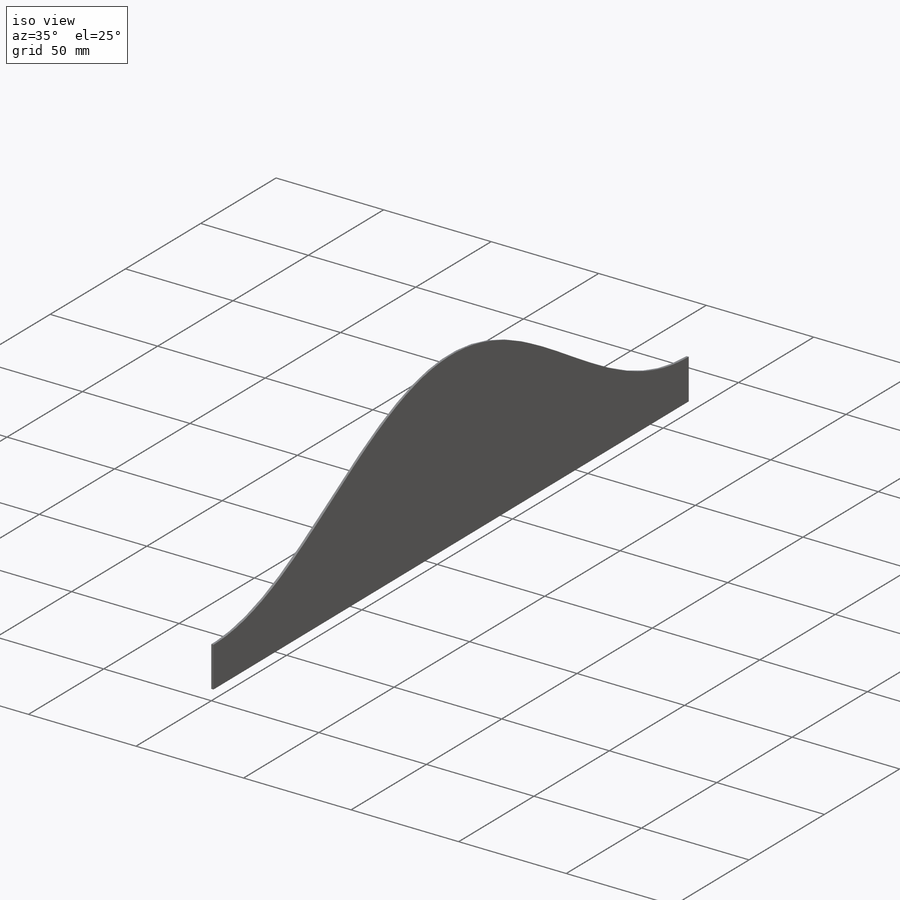
[diagram: iso view]
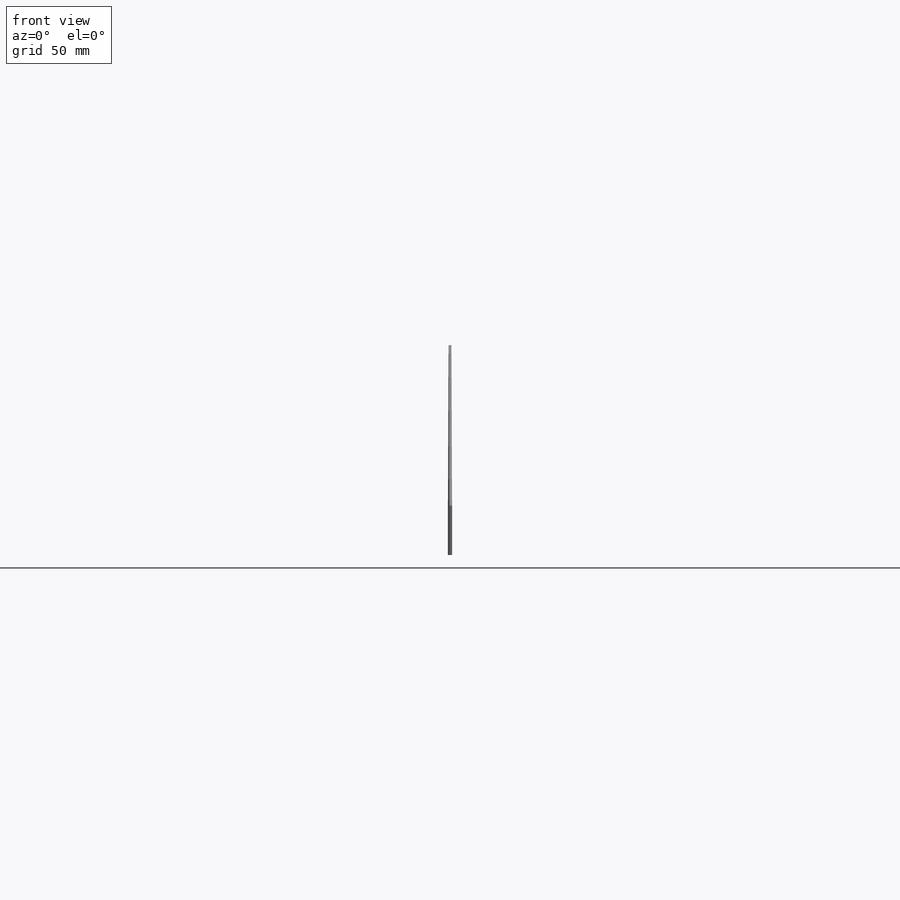
[diagram: front view]
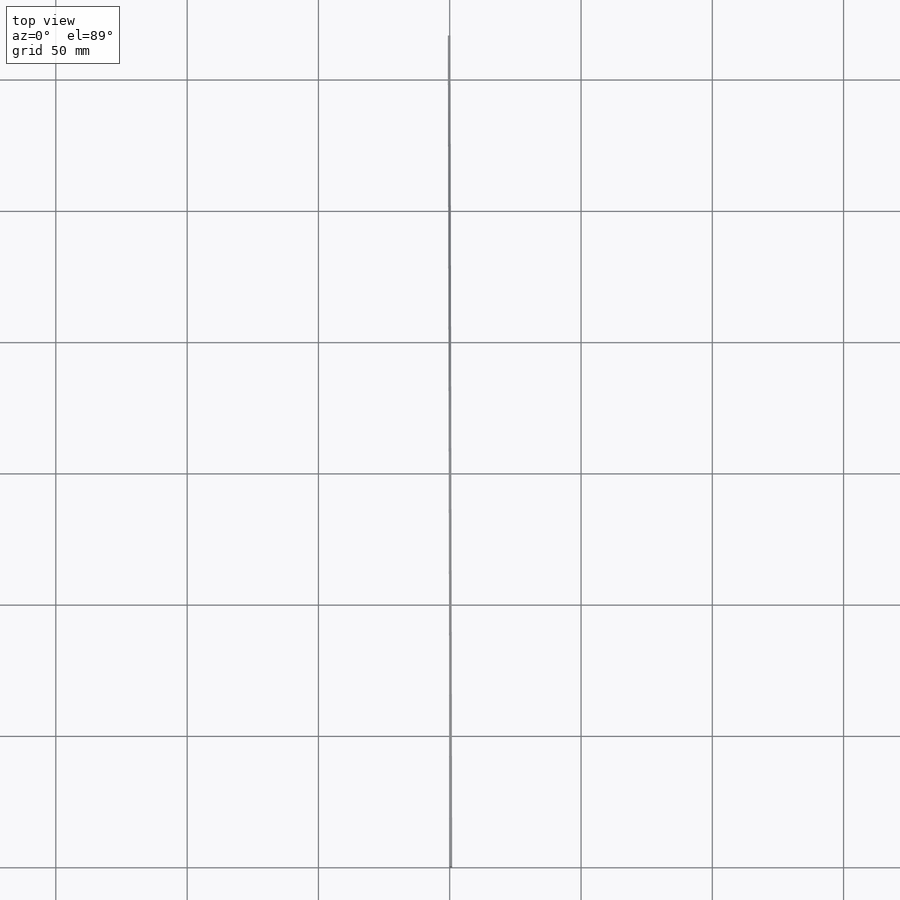
[diagram: top view]
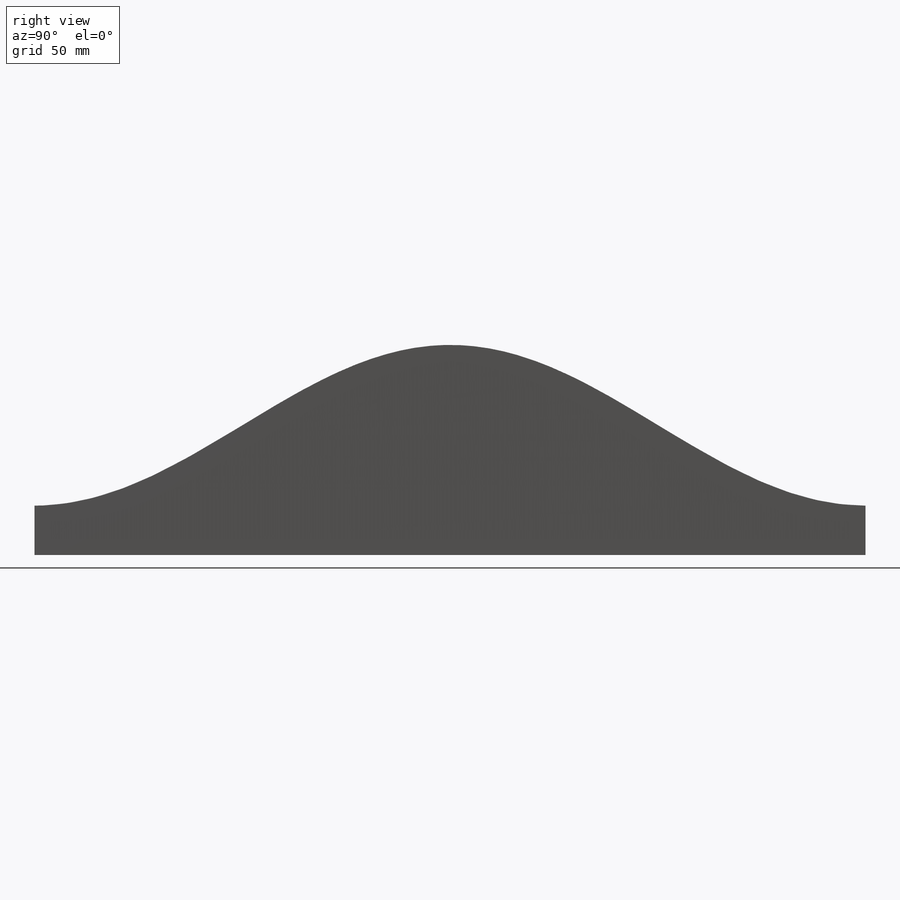
[diagram: right view]
SOLIDWORKS PART (.sldprt)
format: sldprt  version: not decoded by parser v0  size: 214,528 bytes
history: native  units: mm
features: sketch x7, plane x3, cut_extrude x2, material x1, extrude x1, shell x1, sheet_metal_op x1 + 4 further entries (+6 scaffold rows collapsed)
feature tree (26):
  scaffold x6  (default folders/planes/origin — collapsed)
  material  "材料 <未指定>"
  "ｻｰﾌｪｽ ﾎﾞﾃﾞｨ（複数）"
  "ｿﾘｯﾄﾞ ﾎﾞﾃﾞｨ"
  plane  "正面"
  plane  "平面"
  plane  "右側面"
  sketch  "ｽｹｯﾁ1"
  extrude  "ﾎﾞｽ - 押し出し1"  Depth=80mm
  sketch  "ｽｹｯﾁ2"
  cut_extrude  "ｶｯﾄ - 押し出し1"  Depth=110mm
  shell  "ｼｪﾙ1"  Thickness=1mm
  sketch  "ｽｹｯﾁ3"
  cut_extrude  "ｶｯﾄ - 押し出し2"  Depth=110mm
  sheet_metal_op  "板金2"
  sketch  "ﾍﾞﾝﾄﾞ ｽｹｯﾁ2"  dims[D1=0.0mm]
  sketch  "ﾌﾗｯﾄ ｽｹｯﾁ2"  dims[D1=0.0mm]
  "ﾌﾗｯﾄ-ﾊﾟﾀｰﾝ2"
  sketch  "ﾍﾞﾝﾄﾞ-ﾗｲﾝ2"
  sketch  "境界ﾎﾞｯｸｽ2"
  "ｽｹｯﾁ変換1"
decode coverage: 6 of 12 modeling features carry decoded parameters; 4 rows unclassified (native names shown)
note: suppression state not decoded; provenance and decode notes live in map.json
